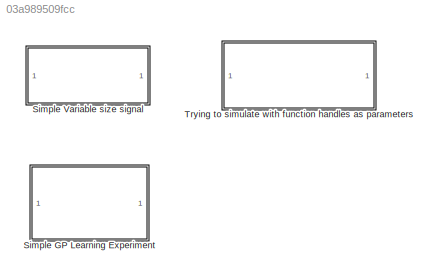
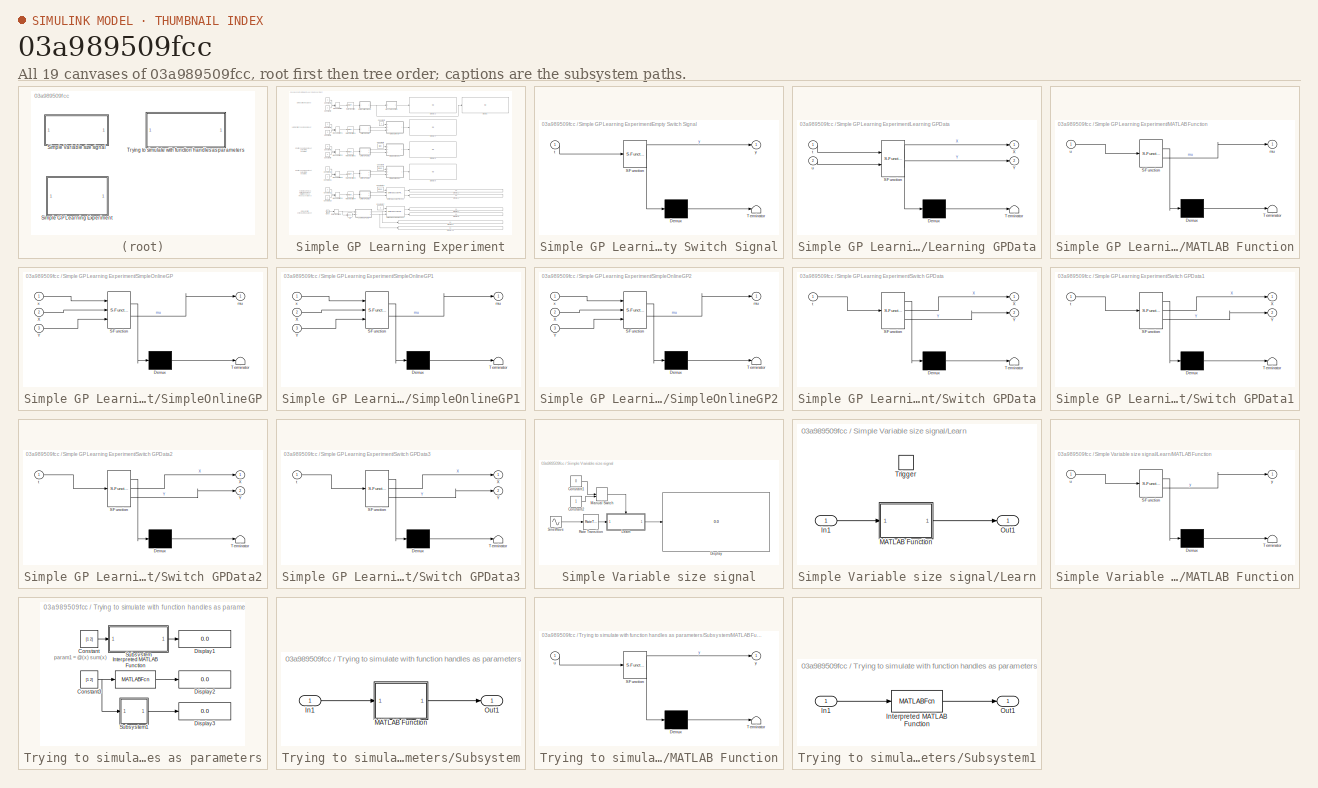
[diagram: thumbnail index - all 19 canvases of the model, root first then tree order]
MODEL slx_03a989509fcc
KIND model
CONFIG AbsTol = auto
CONFIG EnableMultiTasking = off
CONFIG FixedStep = auto
CONFIG MaxStep = auto
CONFIG MinStep = auto
CONFIG RelTol = 1e-3
CONFIG SampleTimeConstraint = Unconstrained
CONFIG SolverName = FixedStepAuto
CONFIG StartTime = 0.0
CONFIG StopTime = inf
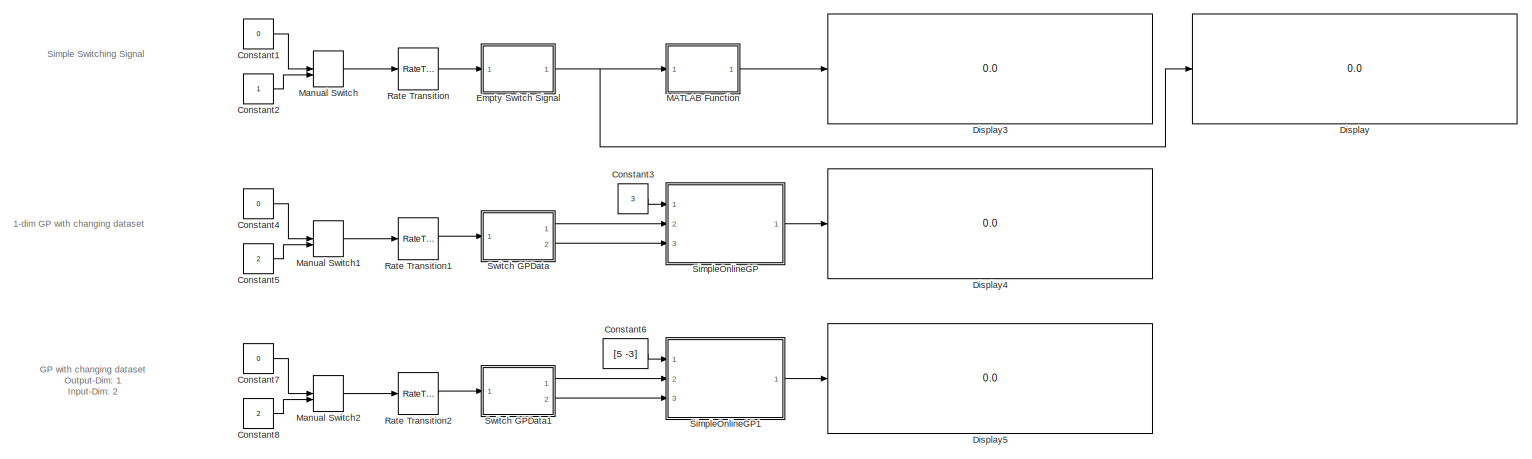
[diagram: Simple GP Learning Experiment - part 1/2, full width, top band]
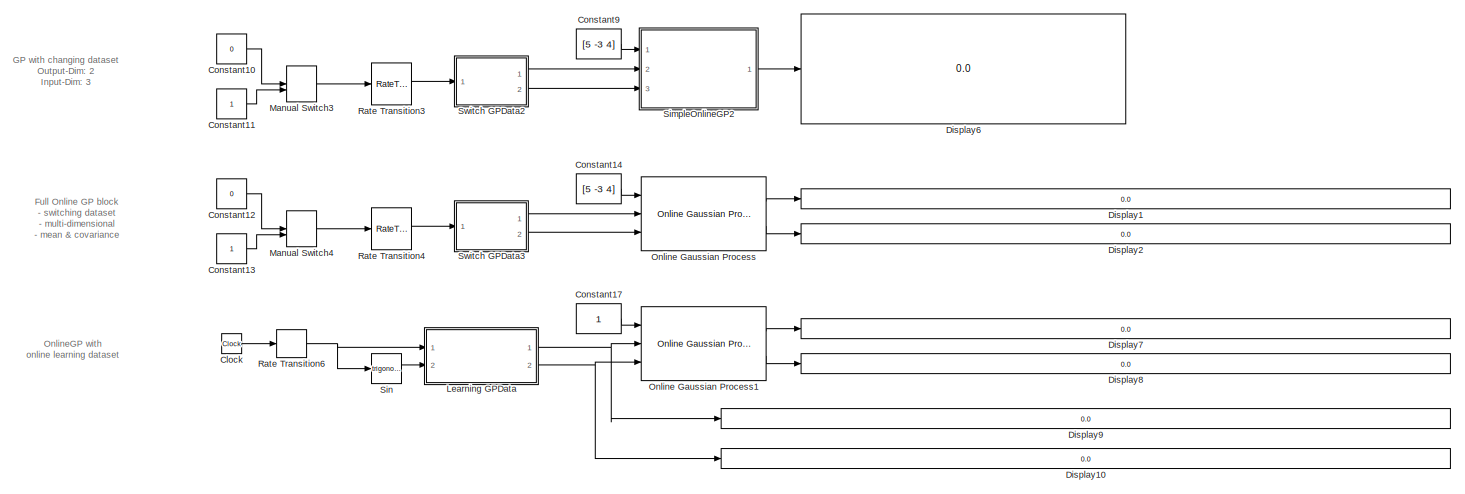
[diagram: Simple GP Learning Experiment - part 2/2, full width, bottom band]
BLOCK [SubSystem] Simple GP Learning Experiment
  Ports = []
  RequestExecContextInheritance = off
BLOCK [Clock] Simple GP Learning Experiment/Clock
BLOCK [Constant] Simple GP Learning Experiment/Constant1
  Value = 0
BLOCK [Constant] Simple GP Learning Experiment/Constant10
  Value = 0
BLOCK [Constant] Simple GP Learning Experiment/Constant11
BLOCK [Constant] Simple GP Learning Experiment/Constant12
  Value = 0
BLOCK [Constant] Simple GP Learning Experiment/Constant13
BLOCK [Constant] Simple GP Learning Experiment/Constant14
  NameLocation = top
  Value = [5 -3 4]
BLOCK [Constant] Simple GP Learning Experiment/Constant17
  NameLocation = top
BLOCK [Constant] Simple GP Learning Experiment/Constant2
BLOCK [Constant] Simple GP Learning Experiment/Constant3
  NameLocation = top
  Value = 3
BLOCK [Constant] Simple GP Learning Experiment/Constant4
  Value = 0
BLOCK [Constant] Simple GP Learning Experiment/Constant5
  Value = 2
BLOCK [Constant] Simple GP Learning Experiment/Constant6
  NameLocation = top
  Value = [5 -3]
BLOCK [Constant] Simple GP Learning Experiment/Constant7
  Value = 0
BLOCK [Constant] Simple GP Learning Experiment/Constant8
  Value = 2
BLOCK [Constant] Simple GP Learning Experiment/Constant9
  NameLocation = top
  Value = [5 -3 4]
BLOCK [Display] Simple GP Learning Experiment/Display
  Decimation = 1
  Ports = [1]
BLOCK [Display] Simple GP Learning Experiment/Display1
  Decimation = 1
  NameLocation = right
  Ports = [1]
BLOCK [Display] Simple GP Learning Experiment/Display10
  Decimation = 1
  NameLocation = right
  Ports = [1]
BLOCK [Display] Simple GP Learning Experiment/Display2
  Decimation = 1
  NameLocation = right
  Ports = [1]
BLOCK [Display] Simple GP Learning Experiment/Display3
  Decimation = 1
  Ports = [1]
BLOCK [Display] Simple GP Learning Experiment/Display4
  Decimation = 1
  Ports = [1]
BLOCK [Display] Simple GP Learning Experiment/Display5
  Decimation = 1
  Ports = [1]
BLOCK [Display] Simple GP Learning Experiment/Display6
  Decimation = 1
  Ports = [1]
BLOCK [Display] Simple GP Learning Experiment/Display7
  Decimation = 1
  NameLocation = right
  Ports = [1]
BLOCK [Display] Simple GP Learning Experiment/Display8
  Decimation = 1
  NameLocation = right
  Ports = [1]
BLOCK [Display] Simple GP Learning Experiment/Display9
  Decimation = 1
  NameLocation = right
  Ports = [1]
BLOCK [SubSystem] Simple GP Learning Experiment/Empty Switch Signal
  ErrorFcn = Stateflow.Translate.translate
  PermitHierarchicalResolution = ExplicitOnly
  Ports = [1, 1]
  RequestExecContextInheritance = off
  SFBlockType = MATLAB Function
  TreatAsAtomicUnit = on
BLOCK [Demux] Simple GP Learning Experiment/Empty Switch Signal/ Demux 
  Outputs = 1
  Ports = [1, 1]
BLOCK [S-Function] Simple GP Learning Experiment/Empty Switch Signal/ SFunction 
  EnableBusSupport = on
  FunctionName = sf_sfun
  PortCounts = [1 2]
  Ports = [1, 2]
  SFcnIsStateOwnerBlock = off
  SFunctionDeploymentMode = off
  Tag = Stateflow S-Function 5
BLOCK [Terminator] Simple GP Learning Experiment/Empty Switch Signal/ Terminator 
BLOCK [Inport] Simple GP Learning Experiment/Empty Switch Signal/t
BLOCK [Outport] Simple GP Learning Experiment/Empty Switch Signal/y
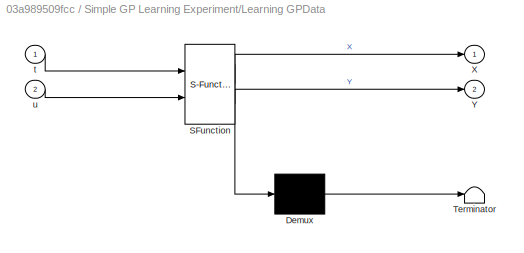
BLOCK [SubSystem] Simple GP Learning Experiment/Learning GPData
  ErrorFcn = Stateflow.Translate.translate
  PermitHierarchicalResolution = ExplicitOnly
  Ports = [2, 2]
  RequestExecContextInheritance = off
  SFBlockType = MATLAB Function
  TreatAsAtomicUnit = on
BLOCK [Demux] Simple GP Learning Experiment/Learning GPData/ Demux 
  Outputs = 1
  Ports = [1, 1]
BLOCK [S-Function] Simple GP Learning Experiment/Learning GPData/ SFunction 
  EnableBusSupport = on
  FunctionName = sf_sfun
  PortCounts = [2 3]
  Ports = [2, 3]
  SFcnIsStateOwnerBlock = off
  SFunctionDeploymentMode = off
  Tag = Stateflow S-Function 3
BLOCK [Terminator] Simple GP Learning Experiment/Learning GPData/ Terminator 
BLOCK [Outport] Simple GP Learning Experiment/Learning GPData/X
BLOCK [Outport] Simple GP Learning Experiment/Learning GPData/Y
  Port = 2
BLOCK [Inport] Simple GP Learning Experiment/Learning GPData/t
BLOCK [Inport] Simple GP Learning Experiment/Learning GPData/u
  Port = 2
BLOCK [SubSystem] Simple GP Learning Experiment/MATLAB Function
  ErrorFcn = Stateflow.Translate.translate
  PermitHierarchicalResolution = ExplicitOnly
  Ports = [1, 1]
  RequestExecContextInheritance = off
  SFBlockType = MATLAB Function
  TreatAsAtomicUnit = on
BLOCK [Demux] Simple GP Learning Experiment/MATLAB Function/ Demux 
  Outputs = 1
  Ports = [1, 1]
BLOCK [S-Function] Simple GP Learning Experiment/MATLAB Function/ SFunction 
  EnableBusSupport = on
  FunctionName = sf_sfun
  PortCounts = [1 2]
  Ports = [1, 2]
  SFcnIsStateOwnerBlock = off
  SFunctionDeploymentMode = off
  Tag = Stateflow S-Function 4
BLOCK [Terminator] Simple GP Learning Experiment/MATLAB Function/ Terminator 
BLOCK [Outport] Simple GP Learning Experiment/MATLAB Function/mu
BLOCK [Inport] Simple GP Learning Experiment/MATLAB Function/u
BLOCK [ManualSwitch] Simple GP Learning Experiment/Manual Switch
BLOCK [ManualSwitch] Simple GP Learning Experiment/Manual Switch1
  CurrentSetting = 0
BLOCK [ManualSwitch] Simple GP Learning Experiment/Manual Switch2
  CurrentSetting = 0
BLOCK [ManualSwitch] Simple GP Learning Experiment/Manual Switch3
  CurrentSetting = 0
BLOCK [ManualSwitch] Simple GP Learning Experiment/Manual Switch4
  CurrentSetting = 0
BLOCK [Reference] Simple GP Learning Experiment/Online Gaussian Process  REF=simlib_vpc_gp/Online Gaussian Process
  Ports = [3, 2]
  SourceBlock = simlib_vpc_gp/Online Gaussian Process
  SourceProductName = VPC Library
  SourceType = Online Gaussian Process [V1]
BLOCK [Reference] Simple GP Learning Experiment/Online Gaussian Process1  REF=simlib_vpc_gp/Online Gaussian Process
  Ports = [3, 2]
  SourceBlock = simlib_vpc_gp/Online Gaussian Process
  SourceProductName = VPC Library
  SourceType = Online Gaussian Process [V1]
BLOCK [RateTransition] Simple GP Learning Experiment/Rate Transition
  OutPortSampleTime = 0.1
BLOCK [RateTransition] Simple GP Learning Experiment/Rate Transition1
  OutPortSampleTime = 0.1
BLOCK [RateTransition] Simple GP Learning Experiment/Rate Transition2
  OutPortSampleTime = 0.1
BLOCK [RateTransition] Simple GP Learning Experiment/Rate Transition3
  OutPortSampleTime = 0.1
BLOCK [RateTransition] Simple GP Learning Experiment/Rate Transition4
  OutPortSampleTime = 0.1
BLOCK [RateTransition] Simple GP Learning Experiment/Rate Transition6
  OutPortSampleTime = 0.1
BLOCK [SubSystem] Simple GP Learning Experiment/SimpleOnlineGP
  ErrorFcn = Stateflow.Translate.translate
  PermitHierarchicalResolution = ExplicitOnly
  Ports = [3, 1]
  RequestExecContextInheritance = off
  SFBlockType = MATLAB Function
  TreatAsAtomicUnit = on
BLOCK [Demux] Simple GP Learning Experiment/SimpleOnlineGP/ Demux 
  Outputs = 1
  Ports = [1, 1]
BLOCK [S-Function] Simple GP Learning Experiment/SimpleOnlineGP/ SFunction 
  EnableBusSupport = on
  FunctionName = sf_sfun
  PortCounts = [3 2]
  Ports = [3, 2]
  SFcnIsStateOwnerBlock = off
  SFunctionDeploymentMode = off
  Tag = Stateflow S-Function 6
BLOCK [Terminator] Simple GP Learning Experiment/SimpleOnlineGP/ Terminator 
BLOCK [Inport] Simple GP Learning Experiment/SimpleOnlineGP/X
  Port = 2
BLOCK [Inport] Simple GP Learning Experiment/SimpleOnlineGP/Y
  Port = 3
BLOCK [Outport] Simple GP Learning Experiment/SimpleOnlineGP/mu
BLOCK [Inport] Simple GP Learning Experiment/SimpleOnlineGP/x
BLOCK [SubSystem] Simple GP Learning Experiment/SimpleOnlineGP1
  ErrorFcn = Stateflow.Translate.translate
  PermitHierarchicalResolution = ExplicitOnly
  Ports = [3, 1]
  RequestExecContextInheritance = off
  SFBlockType = MATLAB Function
  TreatAsAtomicUnit = on
BLOCK [Demux] Simple GP Learning Experiment/SimpleOnlineGP1/ Demux 
  Outputs = 1
  Ports = [1, 1]
BLOCK [S-Function] Simple GP Learning Experiment/SimpleOnlineGP1/ SFunction 
  EnableBusSupport = on
  FunctionName = sf_sfun
  PortCounts = [3 2]
  Ports = [3, 2]
  SFcnIsStateOwnerBlock = off
  SFunctionDeploymentMode = off
  Tag = Stateflow S-Function 8
BLOCK [Terminator] Simple GP Learning Experiment/SimpleOnlineGP1/ Terminator 
BLOCK [Inport] Simple GP Learning Experiment/SimpleOnlineGP1/X
  Port = 2
BLOCK [Inport] Simple GP Learning Experiment/SimpleOnlineGP1/Y
  Port = 3
BLOCK [Outport] Simple GP Learning Experiment/SimpleOnlineGP1/mu
BLOCK [Inport] Simple GP Learning Experiment/SimpleOnlineGP1/x
BLOCK [SubSystem] Simple GP Learning Experiment/SimpleOnlineGP2
  ErrorFcn = Stateflow.Translate.translate
  PermitHierarchicalResolution = ExplicitOnly
  Ports = [3, 1]
  RequestExecContextInheritance = off
  SFBlockType = MATLAB Function
  TreatAsAtomicUnit = on
BLOCK [Demux] Simple GP Learning Experiment/SimpleOnlineGP2/ Demux 
  Outputs = 1
  Ports = [1, 1]
BLOCK [S-Function] Simple GP Learning Experiment/SimpleOnlineGP2/ SFunction 
  EnableBusSupport = on
  FunctionName = sf_sfun
  PortCounts = [3 2]
  Ports = [3, 2]
  SFcnIsStateOwnerBlock = off
  SFunctionDeploymentMode = off
  Tag = Stateflow S-Function 10
BLOCK [Terminator] Simple GP Learning Experiment/SimpleOnlineGP2/ Terminator 
BLOCK [Inport] Simple GP Learning Experiment/SimpleOnlineGP2/X
  Port = 2
BLOCK [Inport] Simple GP Learning Experiment/SimpleOnlineGP2/Y
  Port = 3
BLOCK [Outport] Simple GP Learning Experiment/SimpleOnlineGP2/mu
BLOCK [Inport] Simple GP Learning Experiment/SimpleOnlineGP2/x
BLOCK [Trigonometry] Simple GP Learning Experiment/Sin
  Ports = [1, 1]
BLOCK [SubSystem] Simple GP Learning Experiment/Switch GPData
  ErrorFcn = Stateflow.Translate.translate
  PermitHierarchicalResolution = ExplicitOnly
  Ports = [1, 2]
  RequestExecContextInheritance = off
  SFBlockType = MATLAB Function
  TreatAsAtomicUnit = on
BLOCK [Demux] Simple GP Learning Experiment/Switch GPData/ Demux 
  Outputs = 1
  Ports = [1, 1]
BLOCK [S-Function] Simple GP Learning Experiment/Switch GPData/ SFunction 
  EnableBusSupport = on
  FunctionName = sf_sfun
  PortCounts = [1 3]
  Ports = [1, 3]
  SFcnIsStateOwnerBlock = off
  SFunctionDeploymentMode = off
  Tag = Stateflow S-Function 7
BLOCK [Terminator] Simple GP Learning Experiment/Switch GPData/ Terminator 
BLOCK [Outport] Simple GP Learning Experiment/Switch GPData/X
BLOCK [Outport] Simple GP Learning Experiment/Switch GPData/Y
  Port = 2
BLOCK [Inport] Simple GP Learning Experiment/Switch GPData/t
BLOCK [SubSystem] Simple GP Learning Experiment/Switch GPData1
  ErrorFcn = Stateflow.Translate.translate
  PermitHierarchicalResolution = ExplicitOnly
  Ports = [1, 2]
  RequestExecContextInheritance = off
  SFBlockType = MATLAB Function
  TreatAsAtomicUnit = on
BLOCK [Demux] Simple GP Learning Experiment/Switch GPData1/ Demux 
  Outputs = 1
  Ports = [1, 1]
BLOCK [S-Function] Simple GP Learning Experiment/Switch GPData1/ SFunction 
  EnableBusSupport = on
  FunctionName = sf_sfun
  PortCounts = [1 3]
  Ports = [1, 3]
  SFcnIsStateOwnerBlock = off
  SFunctionDeploymentMode = off
  Tag = Stateflow S-Function 9
BLOCK [Terminator] Simple GP Learning Experiment/Switch GPData1/ Terminator 
BLOCK [Outport] Simple GP Learning Experiment/Switch GPData1/X
BLOCK [Outport] Simple GP Learning Experiment/Switch GPData1/Y
  Port = 2
BLOCK [Inport] Simple GP Learning Experiment/Switch GPData1/t
BLOCK [SubSystem] Simple GP Learning Experiment/Switch GPData2
  ErrorFcn = Stateflow.Translate.translate
  PermitHierarchicalResolution = ExplicitOnly
  Ports = [1, 2]
  RequestExecContextInheritance = off
  SFBlockType = MATLAB Function
  TreatAsAtomicUnit = on
BLOCK [Demux] Simple GP Learning Experiment/Switch GPData2/ Demux 
  Outputs = 1
  Ports = [1, 1]
BLOCK [S-Function] Simple GP Learning Experiment/Switch GPData2/ SFunction 
  EnableBusSupport = on
  FunctionName = sf_sfun
  PortCounts = [1 3]
  Ports = [1, 3]
  SFcnIsStateOwnerBlock = off
  SFunctionDeploymentMode = off
  Tag = Stateflow S-Function 11
BLOCK [Terminator] Simple GP Learning Experiment/Switch GPData2/ Terminator 
BLOCK [Outport] Simple GP Learning Experiment/Switch GPData2/X
BLOCK [Outport] Simple GP Learning Experiment/Switch GPData2/Y
  Port = 2
BLOCK [Inport] Simple GP Learning Experiment/Switch GPData2/t
BLOCK [SubSystem] Simple GP Learning Experiment/Switch GPData3
  ErrorFcn = Stateflow.Translate.translate
  PermitHierarchicalResolution = ExplicitOnly
  Ports = [1, 2]
  RequestExecContextInheritance = off
  SFBlockType = MATLAB Function
  TreatAsAtomicUnit = on
BLOCK [Demux] Simple GP Learning Experiment/Switch GPData3/ Demux 
  Outputs = 1
  Ports = [1, 1]
BLOCK [S-Function] Simple GP Learning Experiment/Switch GPData3/ SFunction 
  EnableBusSupport = on
  FunctionName = sf_sfun
  PortCounts = [1 3]
  Ports = [1, 3]
  SFcnIsStateOwnerBlock = off
  SFunctionDeploymentMode = off
  Tag = Stateflow S-Function 12
BLOCK [Terminator] Simple GP Learning Experiment/Switch GPData3/ Terminator 
BLOCK [Outport] Simple GP Learning Experiment/Switch GPData3/X
BLOCK [Outport] Simple GP Learning Experiment/Switch GPData3/Y
  Port = 2
BLOCK [Inport] Simple GP Learning Experiment/Switch GPData3/t
BLOCK [SubSystem] Simple Variable size signal
  Commented = on
  Ports = []
  RequestExecContextInheritance = off
BLOCK [Constant] Simple Variable size signal/Constant1
  Commented = on
  Value = 0
BLOCK [Constant] Simple Variable size signal/Constant2
  Commented = on
BLOCK [Display] Simple Variable size signal/Display
  Commented = on
  Decimation = 1
  Ports = [1]
BLOCK [SubSystem] Simple Variable size signal/Learn
  Commented = on
  Ports = [1, 1, 0, 1]
  RequestExecContextInheritance = off
  TreatAsAtomicUnit = on
BLOCK [Inport] Simple Variable size signal/Learn/In1
BLOCK [SubSystem] Simple Variable size signal/Learn/MATLAB Function
  ErrorFcn = Stateflow.Translate.translate
  PermitHierarchicalResolution = ExplicitOnly
  Ports = [1, 1]
  RequestExecContextInheritance = off
  SFBlockType = MATLAB Function
  TreatAsAtomicUnit = on
BLOCK [Demux] Simple Variable size signal/Learn/MATLAB Function/ Demux 
  Outputs = 1
  Ports = [1, 1]
BLOCK [S-Function] Simple Variable size signal/Learn/MATLAB Function/ SFunction 
  EnableBusSupport = on
  FunctionName = sf_sfun
  PortCounts = [1 2]
  Ports = [1, 2]
  SFcnIsStateOwnerBlock = off
  SFunctionDeploymentMode = off
  Tag = Stateflow S-Function 2
BLOCK [Terminator] Simple Variable size signal/Learn/MATLAB Function/ Terminator 
BLOCK [Inport] Simple Variable size signal/Learn/MATLAB Function/u
BLOCK [Outport] Simple Variable size signal/Learn/MATLAB Function/y
BLOCK [Outport] Simple Variable size signal/Learn/Out1
BLOCK [TriggerPort] Simple Variable size signal/Learn/Trigger
  Ports = []
  StatesWhenEnabling = held
  VariantControl = (inherit)
BLOCK [ManualSwitch] Simple Variable size signal/Manual Switch
  Commented = on
  CurrentSetting = 0
BLOCK [RateTransition] Simple Variable size signal/Rate Transition
  Commented = on
  OutPortSampleTime = 0.1
BLOCK [Sin] Simple Variable size signal/SineWave
  Commented = on
  Ports = [0, 1]
  SampleTime = 0
BLOCK [SubSystem] Trying to simulate with function handles as parameters
  Commented = on
  Ports = []
  RequestExecContextInheritance = off
BLOCK [Constant] Trying to simulate with function handles as parameters/Constant
  Commented = on
  Value = [1 2]
BLOCK [Constant] Trying to simulate with function handles as parameters/Constant3
  Commented = on
  Value = [1 2]
BLOCK [Display] Trying to simulate with function handles as parameters/Display1
  Commented = on
  Decimation = 1
  Ports = [1]
BLOCK [Display] Trying to simulate with function handles as parameters/Display2
  Commented = on
  Decimation = 1
  Ports = [1]
BLOCK [Display] Trying to simulate with function handles as parameters/Display3
  Commented = on
  Decimation = 1
  Ports = [1]
BLOCK [MATLABFcn] Trying to simulate with function handles as parameters/Interpreted MATLAB Function
  Commented = on
  MATLABFcn = param1(u)
  Ports = [1, 1]
BLOCK [SubSystem] Trying to simulate with function handles as parameters/Subsystem
  Commented = on
  Ports = [1, 1]
  RequestExecContextInheritance = off
BLOCK [Inport] Trying to simulate with function handles as parameters/Subsystem/In1
BLOCK [SubSystem] Trying to simulate with function handles as parameters/Subsystem/MATLAB Function
  ErrorFcn = Stateflow.Translate.translate
  PermitHierarchicalResolution = ExplicitOnly
  Ports = [1, 1]
  RequestExecContextInheritance = off
  SFBlockType = MATLAB Function
  TreatAsAtomicUnit = on
BLOCK [Demux] Trying to simulate with function handles as parameters/Subsystem/MATLAB Function/ Demux 
  Outputs = 1
  Ports = [1, 1]
BLOCK [S-Function] Trying to simulate with function handles as parameters/Subsystem/MATLAB Function/ SFunction 
  EnableBusSupport = on
  FunctionName = sf_sfun
  Parameters = param1
  PortCounts = [1 2]
  Ports = [1, 2]
  SFcnIsStateOwnerBlock = off
  SFunctionDeploymentMode = off
  Tag = Stateflow S-Function 1
BLOCK [Terminator] Trying to simulate with function handles as parameters/Subsystem/MATLAB Function/ Terminator 
BLOCK [Inport] Trying to simulate with function handles as parameters/Subsystem/MATLAB Function/u
BLOCK [Outport] Trying to simulate with function handles as parameters/Subsystem/MATLAB Function/y
BLOCK [Outport] Trying to simulate with function handles as parameters/Subsystem/Out1
BLOCK [SubSystem] Trying to simulate with function handles as parameters/Subsystem1
  Commented = on
  Ports = [1, 1]
  RTWSystemCode = Reusable function
  RequestExecContextInheritance = off
  TreatAsAtomicUnit = on
BLOCK [Inport] Trying to simulate with function handles as parameters/Subsystem1/In1
BLOCK [MATLABFcn] Trying to simulate with function handles as parameters/Subsystem1/Interpreted MATLAB Function
  MATLABFcn = feval(param1,u)
  Ports = [1, 1]
BLOCK [Outport] Trying to simulate with function handles as parameters/Subsystem1/Out1
ANNOTATION Simple GP Learning Experiment: 1-dim GP with changing dataset
ANNOTATION Simple GP Learning Experiment: Full Online GP block - switching dataset - multi-dimensional - mean & covariance
ANNOTATION Simple GP Learning Experiment: GP with changing dataset Output-Dim: 1 Input-Dim: 2
ANNOTATION Simple GP Learning Experiment: GP with changing dataset Output-Dim: 2 Input-Dim: 3
ANNOTATION Simple GP Learning Experiment: OnlineGP with online learning dataset
ANNOTATION Simple GP Learning Experiment: Simple Switching Signal
ANNOTATION Trying to simulate with function handles as parameters: param1 = @(x) sum(x)
LINE Simple GP Learning Experiment/Clock:1 -> Simple GP Learning Experiment/Rate Transition6:1
LINE Simple GP Learning Experiment/Constant10:1 -> Simple GP Learning Experiment/Manual Switch3:1
LINE Simple GP Learning Experiment/Constant11:1 -> Simple GP Learning Experiment/Manual Switch3:2
LINE Simple GP Learning Experiment/Constant12:1 -> Simple GP Learning Experiment/Manual Switch4:1
LINE Simple GP Learning Experiment/Constant13:1 -> Simple GP Learning Experiment/Manual Switch4:2
LINE Simple GP Learning Experiment/Constant14:1 -> Simple GP Learning Experiment/Online Gaussian Process:1
LINE Simple GP Learning Experiment/Constant17:1 -> Simple GP Learning Experiment/Online Gaussian Process1:1
LINE Simple GP Learning Experiment/Constant1:1 -> Simple GP Learning Experiment/Manual Switch:1
LINE Simple GP Learning Experiment/Constant2:1 -> Simple GP Learning Experiment/Manual Switch:2
LINE Simple GP Learning Experiment/Constant3:1 -> Simple GP Learning Experiment/SimpleOnlineGP:1
LINE Simple GP Learning Experiment/Constant4:1 -> Simple GP Learning Experiment/Manual Switch1:1
LINE Simple GP Learning Experiment/Constant5:1 -> Simple GP Learning Experiment/Manual Switch1:2
LINE Simple GP Learning Experiment/Constant6:1 -> Simple GP Learning Experiment/SimpleOnlineGP1:1
LINE Simple GP Learning Experiment/Constant7:1 -> Simple GP Learning Experiment/Manual Switch2:1
LINE Simple GP Learning Experiment/Constant8:1 -> Simple GP Learning Experiment/Manual Switch2:2
LINE Simple GP Learning Experiment/Constant9:1 -> Simple GP Learning Experiment/SimpleOnlineGP2:1
NET Simple GP Learning Experiment/Empty Switch Signal:1 -> Simple GP Learning Experiment/Display:1, Simple GP Learning Experiment/MATLAB Function:1
NET Simple GP Learning Experiment/Learning GPData:1 -> Simple GP Learning Experiment/Display9:1, Simple GP Learning Experiment/Online Gaussian Process1:2
NET Simple GP Learning Experiment/Learning GPData:2 -> Simple GP Learning Experiment/Display10:1, Simple GP Learning Experiment/Online Gaussian Process1:3
LINE Simple GP Learning Experiment/MATLAB Function:1 -> Simple GP Learning Experiment/Display3:1
LINE Simple GP Learning Experiment/Manual Switch1:1 -> Simple GP Learning Experiment/Rate Transition1:1
LINE Simple GP Learning Experiment/Manual Switch2:1 -> Simple GP Learning Experiment/Rate Transition2:1
LINE Simple GP Learning Experiment/Manual Switch3:1 -> Simple GP Learning Experiment/Rate Transition3:1
LINE Simple GP Learning Experiment/Manual Switch4:1 -> Simple GP Learning Experiment/Rate Transition4:1
LINE Simple GP Learning Experiment/Manual Switch:1 -> Simple GP Learning Experiment/Rate Transition:1
LINE Simple GP Learning Experiment/Online Gaussian Process1:1 -> Simple GP Learning Experiment/Display7:1
LINE Simple GP Learning Experiment/Online Gaussian Process1:2 -> Simple GP Learning Experiment/Display8:1
LINE Simple GP Learning Experiment/Online Gaussian Process:1 -> Simple GP Learning Experiment/Display1:1
LINE Simple GP Learning Experiment/Online Gaussian Process:2 -> Simple GP Learning Experiment/Display2:1
LINE Simple GP Learning Experiment/Rate Transition1:1 -> Simple GP Learning Experiment/Switch GPData:1
LINE Simple GP Learning Experiment/Rate Transition2:1 -> Simple GP Learning Experiment/Switch GPData1:1
LINE Simple GP Learning Experiment/Rate Transition3:1 -> Simple GP Learning Experiment/Switch GPData2:1
LINE Simple GP Learning Experiment/Rate Transition4:1 -> Simple GP Learning Experiment/Switch GPData3:1
NET Simple GP Learning Experiment/Rate Transition6:1 -> Simple GP Learning Experiment/Learning GPData:1, Simple GP Learning Experiment/Sin:1
LINE Simple GP Learning Experiment/Rate Transition:1 -> Simple GP Learning Experiment/Empty Switch Signal:1
LINE Simple GP Learning Experiment/SimpleOnlineGP1:1 -> Simple GP Learning Experiment/Display5:1
LINE Simple GP Learning Experiment/SimpleOnlineGP2:1 -> Simple GP Learning Experiment/Display6:1
LINE Simple GP Learning Experiment/SimpleOnlineGP:1 -> Simple GP Learning Experiment/Display4:1
LINE Simple GP Learning Experiment/Sin:1 -> Simple GP Learning Experiment/Learning GPData:2
LINE Simple GP Learning Experiment/Switch GPData1:1 -> Simple GP Learning Experiment/SimpleOnlineGP1:2
LINE Simple GP Learning Experiment/Switch GPData1:2 -> Simple GP Learning Experiment/SimpleOnlineGP1:3
LINE Simple GP Learning Experiment/Switch GPData2:1 -> Simple GP Learning Experiment/SimpleOnlineGP2:2
LINE Simple GP Learning Experiment/Switch GPData2:2 -> Simple GP Learning Experiment/SimpleOnlineGP2:3
LINE Simple GP Learning Experiment/Switch GPData3:1 -> Simple GP Learning Experiment/Online Gaussian Process:2
LINE Simple GP Learning Experiment/Switch GPData3:2 -> Simple GP Learning Experiment/Online Gaussian Process:3
LINE Simple GP Learning Experiment/Switch GPData:1 -> Simple GP Learning Experiment/SimpleOnlineGP:2
LINE Simple GP Learning Experiment/Switch GPData:2 -> Simple GP Learning Experiment/SimpleOnlineGP:3
LINE Simple Variable size signal/Constant1:1 -> Simple Variable size signal/Manual Switch:1
LINE Simple Variable size signal/Constant2:1 -> Simple Variable size signal/Manual Switch:2
LINE Simple Variable size signal/Learn/In1:1 -> Simple Variable size signal/Learn/MATLAB Function:1
LINE Simple Variable size signal/Learn/MATLAB Function:1 -> Simple Variable size signal/Learn/Out1:1
LINE Simple Variable size signal/Learn:1 -> Simple Variable size signal/Display:1
LINE Simple Variable size signal/Manual Switch:1 -> Simple Variable size signal/Learn:trigger
LINE Simple Variable size signal/Rate Transition:1 -> Simple Variable size signal/Learn:1
LINE Simple Variable size signal/SineWave:1 -> Simple Variable size signal/Rate Transition:1
NET Trying to simulate with function handles as parameters/Constant3:1 -> Trying to simulate with function handles as parameters/Interpreted MATLAB Function:1, Trying to simulate with function handles as parameters/Subsystem1:1
LINE Trying to simulate with function handles as parameters/Constant:1 -> Trying to simulate with function handles as parameters/Subsystem:1
LINE Trying to simulate with function handles as parameters/Interpreted MATLAB Function:1 -> Trying to simulate with function handles as parameters/Display2:1
LINE Trying to simulate with function handles as parameters/Subsystem/In1:1 -> Trying to simulate with function handles as parameters/Subsystem/MATLAB Function:1
LINE Trying to simulate with function handles as parameters/Subsystem/MATLAB Function:1 -> Trying to simulate with function handles as parameters/Subsystem/Out1:1
LINE Trying to simulate with function handles as parameters/Subsystem1/In1:1 -> Trying to simulate with function handles as parameters/Subsystem1/Interpreted MATLAB Function:1
LINE Trying to simulate with function handles as parameters/Subsystem1/Interpreted MATLAB Function:1 -> Trying to simulate with function handles as parameters/Subsystem1/Out1:1
LINE Trying to simulate with function handles as parameters/Subsystem1:1 -> Trying to simulate with function handles as parameters/Display3:1
LINE Trying to simulate with function handles as parameters/Subsystem:1 -> Trying to simulate with function handles as parameters/Display1:1
note: NET lines group one-source signal fan-out (src -> all destinations, sorted); 1:1 wires keep LINE
CHART Trying to simulate with function handles as parameters/Subsystem/MATLAB Function states=1 transitions=1
  STATE_LABEL 'eML_blk_kernel()'
  STATE_LABEL 'SCRIPT:\nfunction y = fcn(u, param1)\ndisp(param1)\ny = u;\n'
CHART Simple Variable size signal/Learn/MATLAB Function states=1 transitions=1
  STATE_LABEL 'eML_blk_kernel()'
  STATE_LABEL "SCRIPT:\nfunction y = fcn(u)\n\npersistent data\nif isempty(data)\n    data = [];\nend\n\ncoder.varsize('y',[1 10]);\n\n% learn new data point\ndata = [data u];\n\ny = data;\n"
CHART Simple GP Learning Experiment/Learning GPData states=1 transitions=1
  STATE_LABEL 'eML_blk_kernel()'
  STATE_LABEL "SCRIPT:\nfunction [X,Y] = onlinelearndata(t,u) %#codegen\nT = 5; % Time when a datapoint is added\nM = 10; % how many datapoints\n\n% define persistent data\npersistent X_ Y_\ncoder.varsize('X_',[M 1])\ncoder.varsize('Y_',[M 1])\n\n% init data\nif isempty(X_) || isempty(Y_)\n    X_ = zeros(0,1);\n    Y_ = zeros(0,1);\nend\n\n% append datapoint if triggered\nif mod(t,T) == 0\n    if length(X_) < M\n        X_ = [X_; ...<+140ch>"
CHART Simple GP Learning Experiment/MATLAB Function states=1 transitions=1
  STATE_LABEL 'eML_blk_kernel()'
  STATE_LABEL "SCRIPT:\nfunction mu = fcn(u) %#codegen\n% persistent U A\n% \n% coder.varsize('A',[10 6]);\n% \n% if isempty(U)\n%     U = u;\n%     %A = [];\n%     A = zeros(0,6);\n% end\n% \n% y = U;\n\npersistent A U\n\nif isempty(U)\n    U = u;\nend\n\ncoder.varsize('A');\n% if isempty(A)\n%     \n% end\n\n% update internal copies of U data if they have changed\nif ~isequal(U,u)\n    U = u;\n    \n    % clear A\n    A = zeros(0,1);\nend\n\n...<+143ch>"
CHART Simple GP Learning Experiment/Empty Switch Signal states=1 transitions=1
  STATE_LABEL 'eML_blk_kernel()'
  STATE_LABEL 'SCRIPT:\nfunction y = fcn(t)\ny = [];\nif t >= 1\n    y = 1;\nend\nend\n'
CHART Simple GP Learning Experiment/SimpleOnlineGP states=1 transitions=1
  STATE_LABEL 'eML_blk_kernel()'
  STATE_LABEL "SCRIPT:\nfunction mu = simple_online_gp(x, X, Y) %#codegen\n% persistent U A\n% \n% coder.varsize('A',[10 6]);\n% \n% if isempty(U)\n%     U = u;\n%     %A = [];\n%     A = zeros(0,6);\n% end\n% \n% y = U;\n\npersistent Kinv A X_ Y_\n\n% init internal copy of I/O Data if not yet initialized\nif isempty(X_) || isempty(Y_)\n    X_ = X; Y_ = Y;\nend\n\ncoder.varsize('Kinv');\ncoder.varsize('A');\n% if isempty(A)\n%     \n% e...<+723ch>"
CHART Simple GP Learning Experiment/Switch GPData states=1 transitions=1
  STATE_LABEL 'eML_blk_kernel()'
  STATE_LABEL 'SCRIPT:\nfunction [X,Y] = fcn(t)\nX = zeros(0,1);\nY = zeros(0,1);\nif t == 1\n    X = 1;\n    Y = 2;\nend\nif t == 2\n    X = [1; 3; 5];\n    Y = [2; 6; 10];\nend\n\nend\n'
CHART Simple GP Learning Experiment/SimpleOnlineGP1 states=1 transitions=1
  STATE_LABEL 'eML_blk_kernel()'
  STATE_LABEL "SCRIPT:\nfunction mu = simple_online_gp(x, X, Y) %#codegen\n\npersistent Kinv A X_ Y_\n\n% init internal copy of I/O Data if not yet initialized\nif isempty(X_) || isempty(Y_)\n    X_ = X; Y_ = Y;\nend\n\ncoder.varsize('Kinv');\ncoder.varsize('A');\n% if isempty(A)\n%     \n% end\n\n% update internal copies of data if they have changed\nif ~isequal(X_,X) || ~isequal(Y_,Y)\n    X_ = X; Y_ = Y;\n    \n    % clear Kinv ...<+653ch>"
CHART Simple GP Learning Experiment/Switch GPData1 states=1 transitions=1
  STATE_LABEL 'eML_blk_kernel()'
  STATE_LABEL "SCRIPT:\nfunction [X,Y] = fcn(t)\nX = zeros(0,2);\nY = zeros(0,1);\n\n%coder.varsize('X',[10,2],[1,0]);\nif t == 1\n    X = [1 2];\n    Y = 2;\nend\nif t == 2\n    X = [1 2; 3 0; 5 -3];\n    Y = [2; 6; 10];\nend\n\nend\n"
CHART Simple GP Learning Experiment/SimpleOnlineGP2 states=1 transitions=1
  STATE_LABEL 'eML_blk_kernel()'
  STATE_LABEL "SCRIPT:\nfunction mu = simple_online_gp(x, X, Y) %#codegen\n\npersistent Kinv A X_ Y_\n\n% init internal copy of I/O Data if not yet initialized\nif isempty(X_) || isempty(Y_)\n    X_ = X; Y_ = Y;\nend\n\ncoder.varsize('Kinv');\ncoder.varsize('A');\n\n% Q = size(Y,2); % this doesn't work, but we know the dimension from sn anyway -> so no problem!\nQ = 2;\n\n% update internal copies of data if they have changed\nif...<+710ch>"
CHART Simple GP Learning Experiment/Switch GPData2 states=1 transitions=1
  STATE_LABEL 'eML_blk_kernel()'
  STATE_LABEL 'SCRIPT:\nfunction [X,Y] = fcn(t)\nX = zeros(0,3);\nY = zeros(0,2);\n\nif t == 1\n    X = [1 2 3];\n    Y = [2 3];\nend\nif t == 2\n    X = [1 2 3; 3 0 1; 5 -3 4];\n    Y = [2 1; 6 0; 10 7];\nend\n\nend\n'
CHART Simple GP Learning Experiment/Switch GPData3 states=1 transitions=1
  STATE_LABEL 'eML_blk_kernel()'
  STATE_LABEL 'SCRIPT:\nfunction [X,Y] = fcn(t)\nX = zeros(0,3);\nY = zeros(0,2);\n\nif t == 1\n    X = [1 2 3];\n    Y = [2 3];\nend\nif t == 2\n    X = [1 2 3; 3 0 1; 5 -3 4];\n    Y = [2 1; 6 0; 10 7];\nend\n\nend\n'
CHART  states=0 transitions=0
CHART  states=0 transitions=0
CHART  states=0 transitions=0
CHART  states=0 transitions=0
CHART  states=0 transitions=0
CHART  states=0 transitions=0
CHART  states=0 transitions=0
CHART  states=0 transitions=0
CHART  states=0 transitions=0
CHART  states=0 transitions=0
CHART  states=0 transitions=0
CHART  states=0 transitions=0
